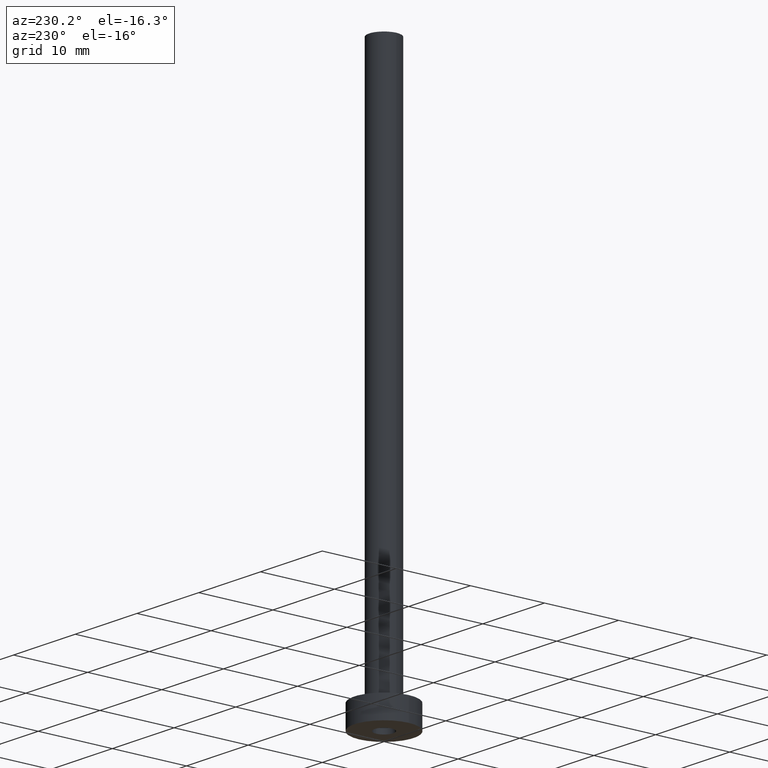
[diagram: clean part render]
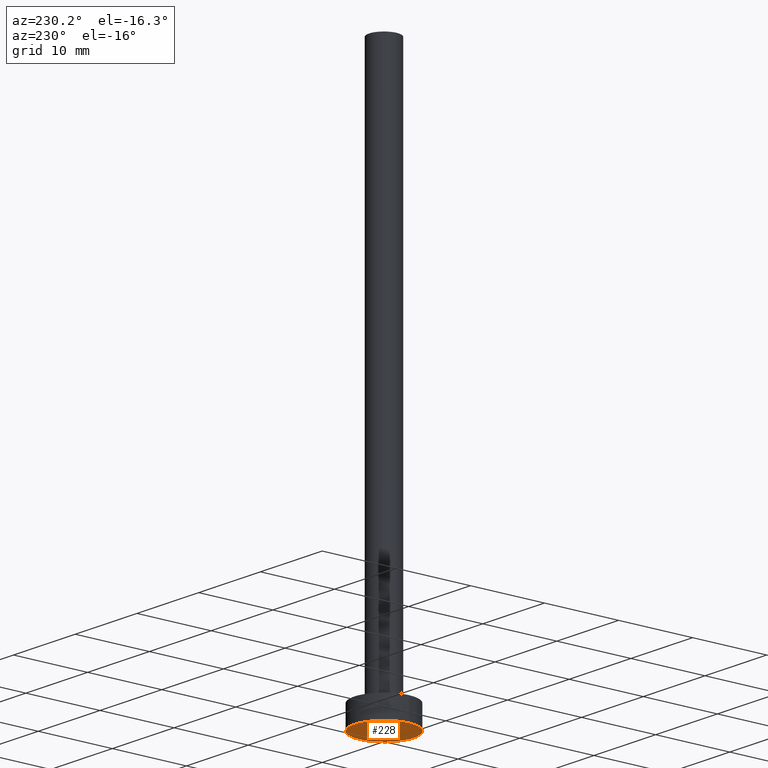
[diagram: same view with one face highlighted and labeled with its STEP entity id]
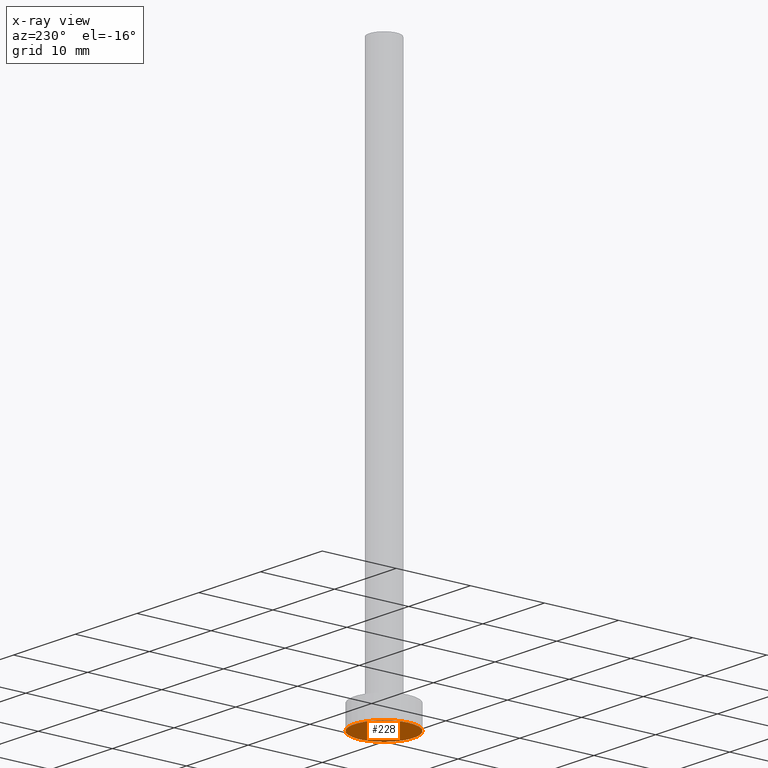
[diagram: x-ray of the same camera — body ghosted, the highlighted face saturated]
A machine part, auxiliary view. The second image highlights one B-rep face of the part: STEP entity #228.
The next image is the same camera in x-ray: the body ghosted, the highlighted face saturated — about 0% of this face is hidden behind the body in this view.
In plain terms, the highlighted planar face has unit normal (0, 0, 1).
Its self-contained STEP definition (entity closure, byte-faithful):
#12 = AXIS2_PLACEMENT_3D ( 'NONE', #85, #60, #19 ) ;
#19 = DIRECTION ( 'NONE',  ( 1.000000000000000000, 0.000000000000000000, 0.000000000000000000 ) ) ;
#21 = FACE_OUTER_BOUND ( 'NONE', #418, .T. ) ;
#22 = VERTEX_POINT ( 'NONE', #294 ) ;
#34 = CIRCLE ( 'NONE', #274, 4.000000000000000000 ) ;
#55 = DIRECTION ( 'NONE',  ( 1.000000000000000000, 0.000000000000000000, -0.000000000000000000 ) ) ;
#59 = VERTEX_POINT ( 'NONE', #401 ) ;
#60 = DIRECTION ( 'NONE',  ( 0.000000000000000000, 0.000000000000000000, 1.000000000000000000 ) ) ;
#74 = DIRECTION ( 'NONE',  ( 1.000000000000000000, 0.000000000000000000, 0.000000000000000000 ) ) ;
#80 = DIRECTION ( 'NONE',  ( 0.000000000000000000, 0.000000000000000000, 1.000000000000000000 ) ) ;
#82 = VERTEX_POINT ( 'NONE', #226 ) ;
#85 = CARTESIAN_POINT ( 'NONE',  ( 0.000000000000000000, 0.000000000000000000, 0.000000000000000000 ) ) ;
#90 = CARTESIAN_POINT ( 'NONE',  ( 0.000000000000000000, 0.000000000000000000, 0.000000000000000000 ) ) ;
#106 = DIRECTION ( 'NONE',  ( -0.000000000000000000, -0.000000000000000000, -1.000000000000000000 ) ) ;
#117 = DIRECTION ( 'NONE',  ( 1.000000000000000000, 0.000000000000000000, 0.000000000000000000 ) ) ;
#151 = CIRCLE ( 'NONE', #12, 4.000000000000000000 ) ;
#157 = CARTESIAN_POINT ( 'NONE',  ( 0.000000000000000000, 0.000000000000000000, 0.000000000000000000 ) ) ;
#165 = DIRECTION ( 'NONE',  ( -0.000000000000000000, -0.000000000000000000, -1.000000000000000000 ) ) ;
#226 = CARTESIAN_POINT ( 'NONE',  ( 1.250000000000000000, 1.530808498934191571E-16, 0.000000000000000000 ) ) ;
#228 = ADVANCED_FACE ( 'NONE', ( #449, #21 ), #279, .F. ) ;
#233 = CARTESIAN_POINT ( 'NONE',  ( -4.000000000000000000, 0.000000000000000000, 0.000000000000000000 ) ) ;
#238 = ORIENTED_EDGE ( 'NONE', *, *, #247, .F. ) ;
#244 = EDGE_CURVE ( 'NONE', #22, #82, #300, .T. ) ;
#247 = EDGE_CURVE ( 'NONE', #59, #249, #151, .T. ) ;
#249 = VERTEX_POINT ( 'NONE', #233 ) ;
#264 = ORIENTED_EDGE ( 'NONE', *, *, #288, .F. ) ;
#274 = AXIS2_PLACEMENT_3D ( 'NONE', #157, #80, #117 ) ;
#279 = PLANE ( 'NONE',  #400 ) ;
#288 = EDGE_CURVE ( 'NONE', #249, #59, #34, .T. ) ;
#294 = CARTESIAN_POINT ( 'NONE',  ( -1.250000000000000000, 0.000000000000000000, 0.000000000000000000 ) ) ;
#300 = CIRCLE ( 'NONE', #389, 1.250000000000000000 ) ;
#310 = DIRECTION ( 'NONE',  ( 0.000000000000000000, 0.000000000000000000, 1.000000000000000000 ) ) ;
#318 = ORIENTED_EDGE ( 'NONE', *, *, #244, .F. ) ;
#357 = ORIENTED_EDGE ( 'NONE', *, *, #458, .F. ) ;
#372 = AXIS2_PLACEMENT_3D ( 'NONE', #434, #106, #74 ) ;
#389 = AXIS2_PLACEMENT_3D ( 'NONE', #417, #165, #447 ) ;
#393 = CIRCLE ( 'NONE', #372, 1.250000000000000000 ) ;
#400 = AXIS2_PLACEMENT_3D ( 'NONE', #90, #310, #55 ) ;
#401 = CARTESIAN_POINT ( 'NONE',  ( 4.000000000000000000, 4.898587196589412829E-16, 0.000000000000000000 ) ) ;
#417 = CARTESIAN_POINT ( 'NONE',  ( 0.000000000000000000, 0.000000000000000000, 0.000000000000000000 ) ) ;
#418 = EDGE_LOOP ( 'NONE', ( #264, #238 ) ) ;
#421 = EDGE_LOOP ( 'NONE', ( #318, #357 ) ) ;
#434 = CARTESIAN_POINT ( 'NONE',  ( 0.000000000000000000, 0.000000000000000000, 0.000000000000000000 ) ) ;
#447 = DIRECTION ( 'NONE',  ( 1.000000000000000000, 0.000000000000000000, 0.000000000000000000 ) ) ;
#449 = FACE_BOUND ( 'NONE', #421, .T. ) ;
#458 = EDGE_CURVE ( 'NONE', #82, #22, #393, .T. ) ;